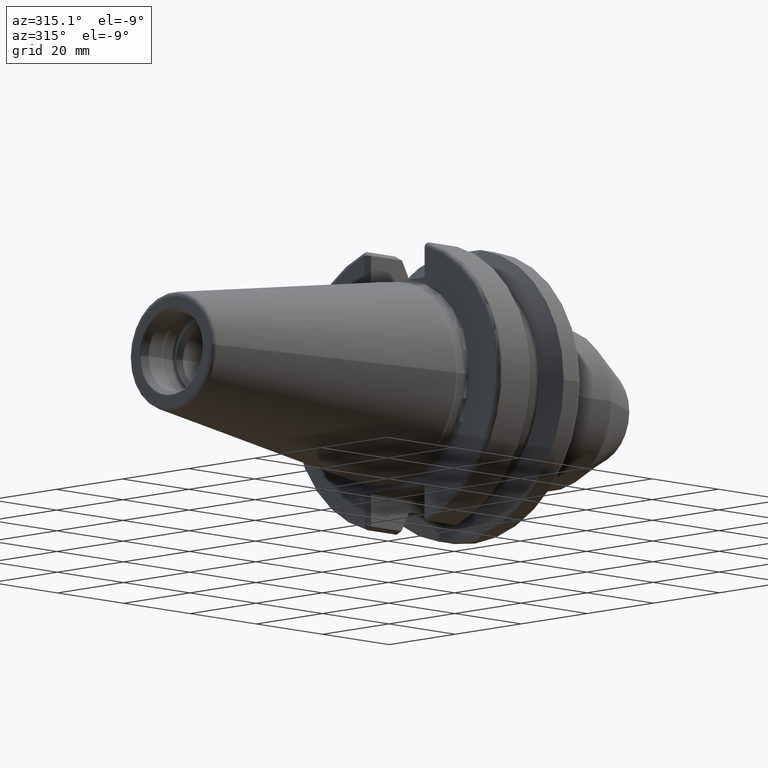
[diagram: clean part render]
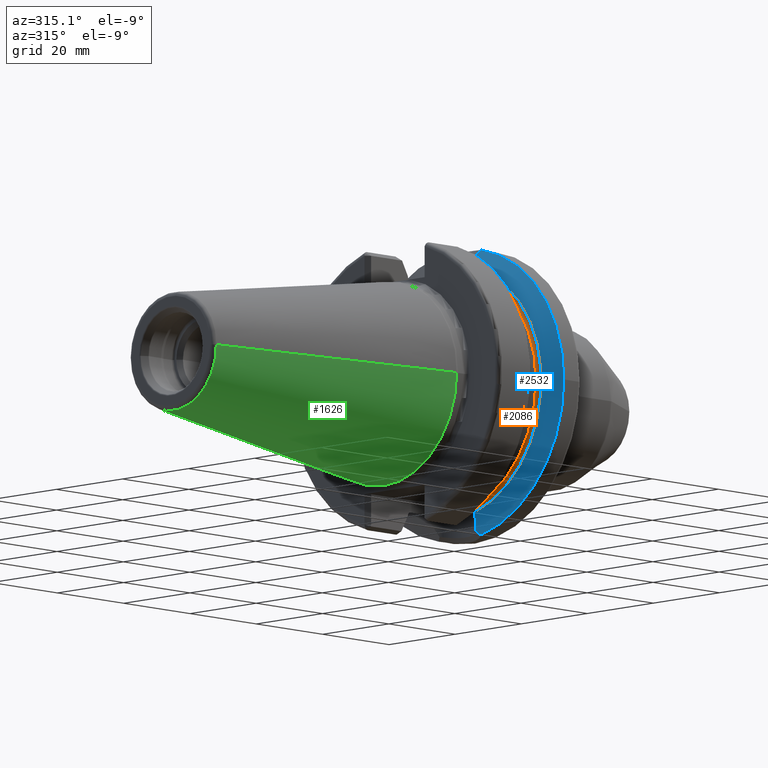
[diagram: same view with three faces highlighted in distinct colors, each labeled with its STEP entity id]
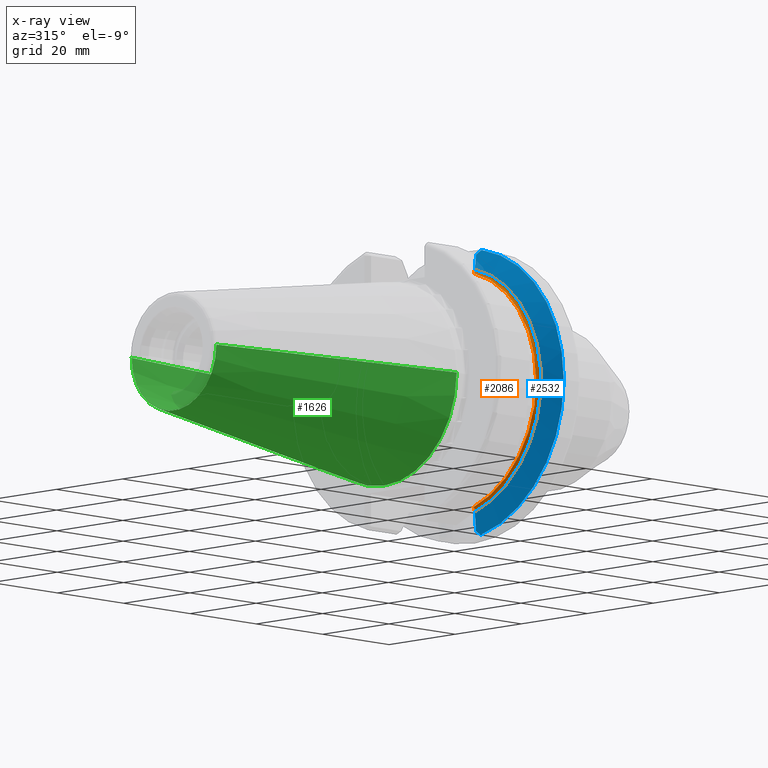
[diagram: x-ray of the same camera — body ghosted, the three highlighted faces saturated]
A machine part, auxiliary view with three faces highlighted in distinct colors.
The next image is the same camera in x-ray (body ghosted, the three faces saturated) — at least one of them is partly hidden behind the body in this view.
Their STEP definitions:

[orange] entity #2086 — the highlighted toroidal blend (fillet) surface has major radius 27.125 mm and minor (blend) radius 0.75 mm.
#440=CARTESIAN_POINT('',(1.91375E1,-7.047603759435E0,-2.619345159100E1));
#441=CARTESIAN_POINT('',(1.91375E1,-7.047603759435E0,-2.612998725804E1));
#442=CARTESIAN_POINT('',(1.912324356271E1,-7.055692563985E0,-2.600243680224E1));
#443=CARTESIAN_POINT('',(1.905138585928E1,-7.095863125167E0,-2.579909751285E1));
#444=CARTESIAN_POINT('',(1.893129669655E1,-7.160762150281E0,-2.561408219456E1));
#445=CARTESIAN_POINT('',(1.877499389890E1,-7.241428280265E0,-2.546209548146E1));
#446=CARTESIAN_POINT('',(1.857872916820E1,-7.336410466726E0,-2.535018075128E1));
#447=CARTESIAN_POINT('',(1.845215642376E1,-7.393426677236E0,-2.531755770651E1));
#448=CARTESIAN_POINT('',(1.83875E1,-7.421588020768E0,-2.530929979770E1));
#460=CARTESIAN_POINT('',(1.91375E1,0.E0,0.E0));
#461=DIRECTION('',(1.E0,0.E0,0.E0));
#462=DIRECTION('',(0.E0,-2.598194934354E-1,9.656572015115E-1));
#463=AXIS2_PLACEMENT_3D('',#460,#461,#462);
#465=CARTESIAN_POINT('',(1.83875E1,0.E0,0.E0));
#466=DIRECTION('',(-1.E0,0.E0,0.E0));
#467=DIRECTION('',(0.E0,-2.813872235362E-1,-9.595943051262E-1));
#468=AXIS2_PLACEMENT_3D('',#465,#466,#467);
#522=CARTESIAN_POINT('',(1.83875E1,-7.421588020768E0,2.530929979770E1));
#523=CARTESIAN_POINT('',(1.845215642376E1,-7.393426677236E0,2.531755770651E1));
#524=CARTESIAN_POINT('',(1.857872916820E1,-7.336410466726E0,2.535018075128E1));
#525=CARTESIAN_POINT('',(1.877499389890E1,-7.241428280265E0,2.546209548146E1));
#526=CARTESIAN_POINT('',(1.893129669655E1,-7.160762150281E0,2.561408219456E1));
#527=CARTESIAN_POINT('',(1.905138585928E1,-7.095863125167E0,2.579909751285E1));
#528=CARTESIAN_POINT('',(1.912324356271E1,-7.055692563985E0,2.600243680224E1));
#529=CARTESIAN_POINT('',(1.91375E1,-7.047603759435E0,2.612998725804E1));
#530=CARTESIAN_POINT('',(1.91375E1,-7.047603759435E0,2.619345159100E1));
#1318=CARTESIAN_POINT('',(1.91375E1,-7.047603759435E0,2.619345159100E1));
#1319=CARTESIAN_POINT('',(1.91375E1,-7.047603759435E0,-2.619345159100E1));
#1320=VERTEX_POINT('',#1318);
#1321=VERTEX_POINT('',#1319);
#1322=CARTESIAN_POINT('',(1.83875E1,-7.421588020768E0,-2.530929979770E1));
#1323=CARTESIAN_POINT('',(1.83875E1,-7.421588020768E0,2.530929979770E1));
#1324=VERTEX_POINT('',#1322);
#1325=VERTEX_POINT('',#1323);
#2074=CARTESIAN_POINT('',(1.83875E1,0.E0,0.E0));
#2075=DIRECTION('',(1.E0,0.E0,0.E0));
#2076=DIRECTION('',(0.E0,-1.E0,0.E0));
#2077=AXIS2_PLACEMENT_3D('',#2074,#2075,#2076);
#2078=TOROIDAL_SURFACE('',#2077,2.7125E1,7.5E-1);
#2079=ORIENTED_EDGE('',*,*,#2051,.T.);
#2080=ORIENTED_EDGE('',*,*,#2026,.T.);
#2081=ORIENTED_EDGE('',*,*,#1998,.T.);
#2083=ORIENTED_EDGE('',*,*,#2082,.T.);
#2084=EDGE_LOOP('',(#2079,#2080,#2081,#2083));
#2085=FACE_OUTER_BOUND('',#2084,.F.);
#2086=ADVANCED_FACE('',(#2085),#2078,.F.);
#449=B_SPLINE_CURVE_WITH_KNOTS('',3,(#440,#441,#442,#443,#444,#445,#446,#447,
#448),.UNSPECIFIED.,.F.,.F.,(4,1,1,1,1,1,4),(0.E0,1.666666666667E-1,
3.333333333333E-1,5.E-1,6.666666666667E-1,8.333333333333E-1,1.E0),
.UNSPECIFIED.);
#464=CIRCLE('',#463,2.7125E1);
#469=CIRCLE('',#468,2.6375E1);
#531=B_SPLINE_CURVE_WITH_KNOTS('',3,(#522,#523,#524,#525,#526,#527,#528,#529,
#530),.UNSPECIFIED.,.F.,.F.,(4,1,1,1,1,1,4),(0.E0,1.666666666667E-1,
3.333333333333E-1,5.E-1,6.666666666667E-1,8.333333333333E-1,1.E0),
.UNSPECIFIED.);
#1998=EDGE_CURVE('',#1324,#1325,#469,.T.);
#2026=EDGE_CURVE('',#1321,#1324,#449,.T.);
#2051=EDGE_CURVE('',#1320,#1321,#464,.T.);
#2082=EDGE_CURVE('',#1325,#1320,#531,.T.);

[blue] entity #2532 — the highlighted conical surface has half-angle 60 deg.
#246=CARTESIAN_POINT('',(2.162727746897E1,0.E0,0.E0));
#247=DIRECTION('',(1.E0,0.E0,0.E0));
#248=DIRECTION('',(0.E0,-1.E0,0.E0));
#249=AXIS2_PLACEMENT_3D('',#246,#247,#248);
#390=CARTESIAN_POINT('',(2.105861410330E1,-5.538624876202E0,-2.999548227013E1));
#391=CARTESIAN_POINT('',(2.093797596673E1,-5.667212931971E0,-2.975925502394E1));
#392=CARTESIAN_POINT('',(2.069265782077E1,-5.911926204526E0,-2.927912632192E1));
#393=CARTESIAN_POINT('',(2.031281915354E1,-6.245686951976E0,-2.853656269645E1));
#394=CARTESIAN_POINT('',(1.992518154069E1,-6.546159346979E0,-2.777970817700E1));
#395=CARTESIAN_POINT('',(1.953227047098E1,-6.814802578335E0,-2.701362543231E1));
#396=CARTESIAN_POINT('',(1.926930512179E1,-6.973122571862E0,-2.650168908776E1));
#397=CARTESIAN_POINT('',(1.91375E1,-7.047603759435E0,-2.624530807186E1));
#510=CARTESIAN_POINT('',(1.91375E1,-7.047603759435E0,2.624530807186E1));
#511=CARTESIAN_POINT('',(1.929439846909E1,-6.958942680509E0,2.655049946618E1));
#512=CARTESIAN_POINT('',(1.960708097731E1,-6.768483112184E0,2.715932176805E1));
#513=CARTESIAN_POINT('',(2.007318172595E1,-6.438434899025E0,2.806848574420E1));
#514=CARTESIAN_POINT('',(2.053077179900E1,-6.062239171320E0,2.896247872395E1));
#515=CARTESIAN_POINT('',(2.082597009394E1,-5.780364268794E0,2.954002310797E1));
#516=CARTESIAN_POINT('',(2.097101986641E1,-5.630536201239E0,2.982398115757E1));
#768=CARTESIAN_POINT('',(1.91375E1,0.E0,0.E0));
#769=DIRECTION('',(-1.E0,0.E0,0.E0));
#770=DIRECTION('',(0.E0,-2.593406914876E-1,-9.657859005694E-1));
#771=AXIS2_PLACEMENT_3D('',#768,#769,#770);
#773=CARTESIAN_POINT('',(2.162727746897E1,-6.376922817779E0,-3.083500464774E1));
#774=CARTESIAN_POINT('',(2.156218909379E1,-6.282140745244E0,-3.073948435803E1));
#775=CARTESIAN_POINT('',(2.143328374119E1,-6.093677896303E0,-3.054993954761E1));
#776=CARTESIAN_POINT('',(2.124372162968E1,-5.814243469633E0,-3.027008547410E1));
#777=CARTESIAN_POINT('',(2.111989421200E1,-5.630139092100E0,-3.008651882343E1));
#778=CARTESIAN_POINT('',(2.105861410330E1,-5.538624876202E0,-2.999548227013E1));
#797=CARTESIAN_POINT('',(2.162727746897E1,0.E0,0.E0));
#798=DIRECTION('',(1.E0,0.E0,0.E0));
#799=DIRECTION('',(0.E0,-2.095835969751E-1,9.777907321503E-1));
#800=AXIS2_PLACEMENT_3D('',#797,#798,#799);
#1081=CARTESIAN_POINT('',(2.097101986641E1,-5.630536201239E0,2.982398115757E1));
#1082=CARTESIAN_POINT('',(2.104137563571E1,-5.736016200038E0,2.992807979955E1));
#1083=CARTESIAN_POINT('',(2.118379229094E1,-5.948393440019E0,3.013829960430E1));
#1084=CARTESIAN_POINT('',(2.140255866426E1,-6.271300885570E0,3.045972523365E1));
#1085=CARTESIAN_POINT('',(2.155180188305E1,-6.489453954811E0,3.067802584122E1));
#1086=CARTESIAN_POINT('',(2.162727746897E1,-6.599263509754E0,3.078818567858E1));
#1338=CARTESIAN_POINT('',(1.91375E1,-7.047603759435E0,-2.624530807186E1));
#1339=CARTESIAN_POINT('',(1.91375E1,-7.047603759435E0,2.624530807186E1));
#1340=VERTEX_POINT('',#1338);
#1341=VERTEX_POINT('',#1339);
#1354=CARTESIAN_POINT('',(2.162727746897E1,-3.14875E1,0.E0));
#1355=CARTESIAN_POINT('',(2.162727746897E1,-6.376922817779E0,
-3.083500464774E1));
#1356=VERTEX_POINT('',#1354);
#1357=VERTEX_POINT('',#1355);
#1362=CARTESIAN_POINT('',(2.162727746897E1,-6.599263509754E0,3.078818567858E1));
#1363=VERTEX_POINT('',#1362);
#1454=VERTEX_POINT('',#516);
#1462=VERTEX_POINT('',#390);
#2515=CARTESIAN_POINT('',(2.038238873448E1,0.E0,0.E0));
#2516=DIRECTION('',(1.E0,0.E0,0.E0));
#2517=DIRECTION('',(0.E0,-1.E0,0.E0));
#2518=AXIS2_PLACEMENT_3D('',#2515,#2516,#2517);
#2519=CONICAL_SURFACE('',#2518,2.933128946210E1,6.E1);
#2521=ORIENTED_EDGE('',*,*,#2520,.T.);
#2522=ORIENTED_EDGE('',*,*,#1887,.T.);
#2524=ORIENTED_EDGE('',*,*,#2523,.T.);
#2525=ORIENTED_EDGE('',*,*,#2010,.T.);
#2526=ORIENTED_EDGE('',*,*,#2055,.T.);
#2527=ORIENTED_EDGE('',*,*,#2106,.T.);
#2529=ORIENTED_EDGE('',*,*,#2528,.T.);
#2530=EDGE_LOOP('',(#2521,#2522,#2524,#2525,#2526,#2527,#2529));
#2531=FACE_OUTER_BOUND('',#2530,.F.);
#2532=ADVANCED_FACE('',(#2531),#2519,.T.);
#250=CIRCLE('',#249,3.14875E1);
#398=B_SPLINE_CURVE_WITH_KNOTS('',3,(#390,#391,#392,#393,#394,#395,#396,#397),
.UNSPECIFIED.,.F.,.F.,(4,1,1,1,1,4),(0.E0,2.E-1,4.E-1,6.E-1,8.E-1,1.E0),
.UNSPECIFIED.);
#517=B_SPLINE_CURVE_WITH_KNOTS('',3,(#510,#511,#512,#513,#514,#515,#516),
.UNSPECIFIED.,.F.,.F.,(4,1,1,1,4),(0.E0,2.5E-1,5.E-1,7.5E-1,1.E0),
.UNSPECIFIED.);
#772=CIRCLE('',#771,2.717507892421E1);
#779=B_SPLINE_CURVE_WITH_KNOTS('',3,(#773,#774,#775,#776,#777,#778),
.UNSPECIFIED.,.F.,.F.,(4,1,1,4),(0.E0,3.333333333333E-1,6.666666666667E-1,1.E0),
.UNSPECIFIED.);
#801=CIRCLE('',#800,3.14875E1);
#1087=B_SPLINE_CURVE_WITH_KNOTS('',3,(#1081,#1082,#1083,#1084,#1085,#1086),
.UNSPECIFIED.,.F.,.F.,(4,1,1,4),(0.E0,3.333333333333E-1,6.666666666667E-1,1.E0),
.UNSPECIFIED.);
#1887=EDGE_CURVE('',#1356,#1357,#250,.T.);
#2010=EDGE_CURVE('',#1462,#1340,#398,.T.);
#2055=EDGE_CURVE('',#1340,#1341,#772,.T.);
#2106=EDGE_CURVE('',#1341,#1454,#517,.T.);
#2520=EDGE_CURVE('',#1363,#1356,#801,.T.);
#2523=EDGE_CURVE('',#1357,#1462,#779,.T.);
#2528=EDGE_CURVE('',#1454,#1363,#1087,.T.);

[green] entity #1626 — the highlighted conical surface has half-angle 8.298 deg.
#32=CARTESIAN_POINT('',(-6.454431866917E1,0.E0,0.E0));
#33=DIRECTION('',(-1.E0,0.E0,0.E0));
#34=DIRECTION('',(0.E0,1.E0,0.E0));
#35=AXIS2_PLACEMENT_3D('',#32,#33,#34);
#47=DIRECTION('',(-9.895312636440E-1,-1.443186691705E-1,0.E0));
#48=VECTOR('',#47,6.394703124850E1);
#49=CARTESIAN_POINT('',(-1.266732031557E0,2.204025284980E1,0.E0));
#50=LINE('',#49,#48);
#51=DIRECTION('',(-9.895312636440E-1,1.443186691705E-1,0.E0));
#52=VECTOR('',#51,6.394703124850E1);
#53=CARTESIAN_POINT('',(-1.266732031557E0,-2.204025284980E1,0.E0));
#54=LINE('',#53,#52);
#55=CARTESIAN_POINT('',(-1.266732031557E0,0.E0,0.E0));
#56=DIRECTION('',(-1.E0,0.E0,0.E0));
#57=DIRECTION('',(0.E0,1.E0,0.E0));
#58=AXIS2_PLACEMENT_3D('',#55,#56,#57);
#1294=CARTESIAN_POINT('',(-6.454431866917E1,1.281150240261E1,0.E0));
#1296=VERTEX_POINT('',#1294);
#1298=CARTESIAN_POINT('',(-6.454431866917E1,-1.281150240261E1,0.E0));
#1300=VERTEX_POINT('',#1298);
#1513=CARTESIAN_POINT('',(-1.266732031557E0,2.204025284980E1,0.E0));
#1514=VERTEX_POINT('',#1513);
#1515=CARTESIAN_POINT('',(-1.266732031557E0,-2.204025284980E1,0.E0));
#1516=VERTEX_POINT('',#1515);
#1614=CARTESIAN_POINT('',(-3.290552535036E1,0.E0,0.E0));
#1615=DIRECTION('',(1.E0,0.E0,0.E0));
#1616=DIRECTION('',(0.E0,-1.E0,0.E0));
#1617=AXIS2_PLACEMENT_3D('',#1614,#1615,#1616);
#1618=CONICAL_SURFACE('',#1617,1.742587762621E1,8.297826828206E0);
#1619=ORIENTED_EDGE('',*,*,#1604,.T.);
#1620=ORIENTED_EDGE('',*,*,#1581,.T.);
#1621=ORIENTED_EDGE('',*,*,#1608,.F.);
#1623=ORIENTED_EDGE('',*,*,#1622,.F.);
#1624=EDGE_LOOP('',(#1619,#1620,#1621,#1623));
#1625=FACE_OUTER_BOUND('',#1624,.F.);
#1626=ADVANCED_FACE('',(#1625),#1618,.T.);
#36=CIRCLE('',#35,1.281150240261E1);
#59=CIRCLE('',#58,2.204025284980E1);
#1581=EDGE_CURVE('',#1296,#1300,#36,.T.);
#1604=EDGE_CURVE('',#1514,#1296,#50,.T.);
#1608=EDGE_CURVE('',#1516,#1300,#54,.T.);
#1622=EDGE_CURVE('',#1514,#1516,#59,.T.);